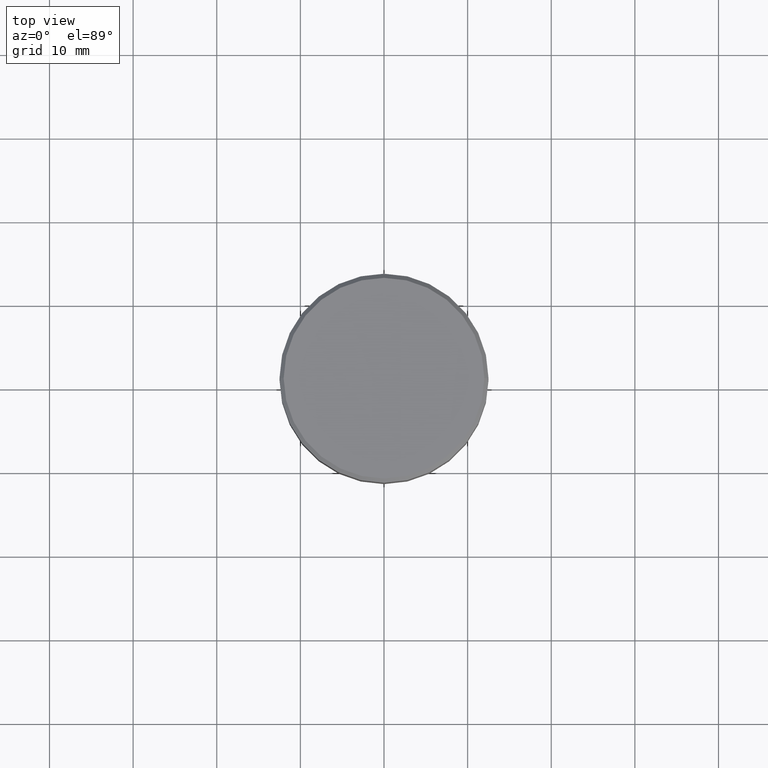
[diagram: clean part render]
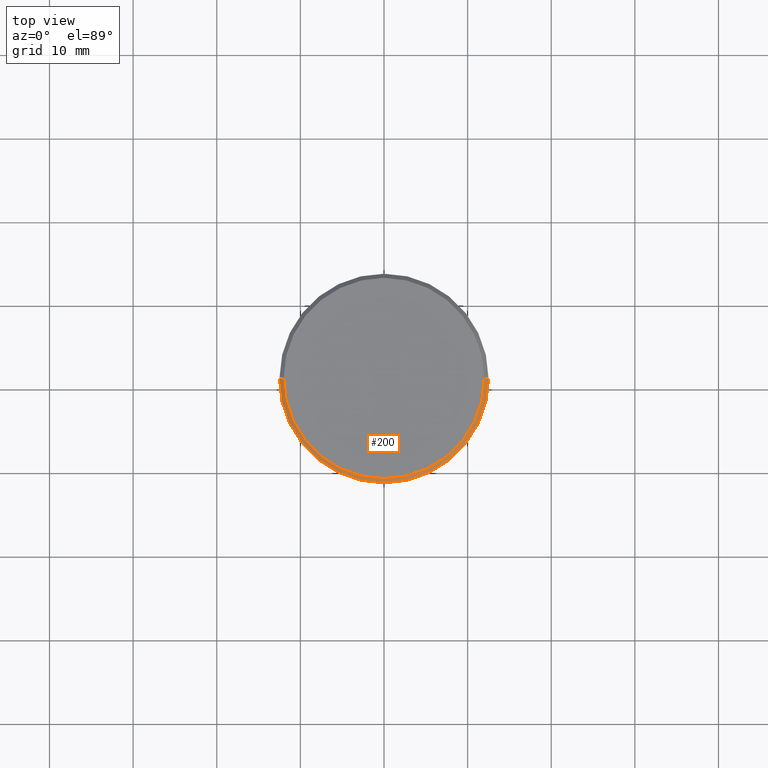
[diagram: same view with one face highlighted and labeled with its STEP entity id]
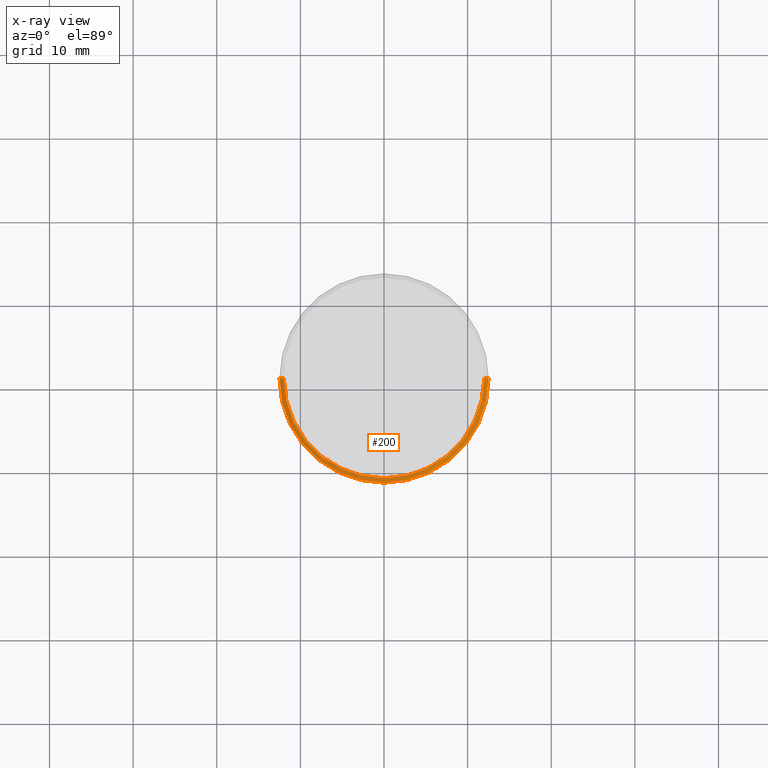
[diagram: x-ray of the same camera — body ghosted, the highlighted face saturated]
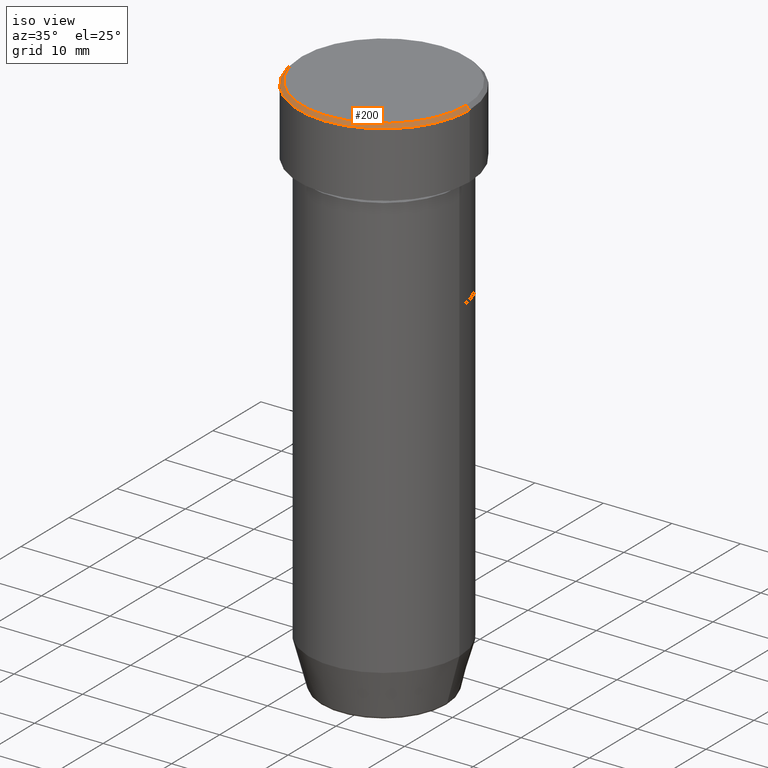
[diagram: same view with one face highlighted and labeled with its STEP entity id]
A machine part, top view. The second image highlights one B-rep face of the part: STEP entity #200.
The next image is the same camera in x-ray: the body ghosted, the highlighted face saturated — about 0% of this face is hidden behind the body in this view.
A second angle (iso view) of the same face is appended — the face is thin or edge-on in the first view.
In plain terms, the highlighted conical surface has half-angle 45 deg.
Its self-contained STEP definition (entity closure, byte-faithful):
#2 = CARTESIAN_POINT ( 'NONE',  ( 0.000000000000000000, 0.000000000000000000, 0.000000000000000000 ) ) ;
#4 = VERTEX_POINT ( 'NONE', #120 ) ;
#11 = AXIS2_PLACEMENT_3D ( 'NONE', #507, #373, #294 ) ;
#41 = CIRCLE ( 'NONE', #237, 12.00000000000000355 ) ;
#51 = ORIENTED_EDGE ( 'NONE', *, *, #521, .F. ) ;
#55 = VERTEX_POINT ( 'NONE', #117 ) ;
#96 = AXIS2_PLACEMENT_3D ( 'NONE', #2, #578, #440 ) ;
#117 = CARTESIAN_POINT ( 'NONE',  ( -12.00000000000000355, 0.000000000000000000, 0.000000000000000000 ) ) ;
#120 = CARTESIAN_POINT ( 'NONE',  ( 12.50000000000000000, 0.000000000000000000, -0.4999999999999988343 ) ) ;
#123 = DIRECTION ( 'NONE',  ( 1.000000000000000000, 0.000000000000000000, 0.000000000000000000 ) ) ;
#126 = VECTOR ( 'NONE', #556, 999.9999999999998863 ) ;
#128 = VERTEX_POINT ( 'NONE', #135 ) ;
#130 = EDGE_CURVE ( 'NONE', #4, #128, #505, .T. ) ;
#135 = CARTESIAN_POINT ( 'NONE',  ( -12.50000000000000000, 1.530808498934191521E-15, -0.4999999999999988343 ) ) ;
#166 = EDGE_CURVE ( 'NONE', #55, #128, #424, .T. ) ;
#200 = ADVANCED_FACE ( 'NONE', ( #413 ), #525, .T. ) ;
#237 = AXIS2_PLACEMENT_3D ( 'NONE', #593, #545, #123 ) ;
#256 = EDGE_CURVE ( 'NONE', #55, #277, #41, .T. ) ;
#275 = CARTESIAN_POINT ( 'NONE',  ( 12.00000000000000355, 1.469576158976824342E-15, 0.000000000000000000 ) ) ;
#277 = VERTEX_POINT ( 'NONE', #529 ) ;
#294 = DIRECTION ( 'NONE',  ( 1.000000000000000000, 0.000000000000000000, 0.000000000000000000 ) ) ;
#335 = ORIENTED_EDGE ( 'NONE', *, *, #166, .T. ) ;
#357 = ORIENTED_EDGE ( 'NONE', *, *, #130, .F. ) ;
#373 = DIRECTION ( 'NONE',  ( 0.000000000000000000, 0.000000000000000000, -1.000000000000000000 ) ) ;
#407 = ORIENTED_EDGE ( 'NONE', *, *, #256, .F. ) ;
#413 = FACE_OUTER_BOUND ( 'NONE', #506, .T. ) ;
#424 = LINE ( 'NONE', #568, #579 ) ;
#440 = DIRECTION ( 'NONE',  ( -1.000000000000000000, 0.000000000000000000, 0.000000000000000000 ) ) ;
#456 = LINE ( 'NONE', #275, #126 ) ;
#505 = CIRCLE ( 'NONE', #11, 12.50000000000000000 ) ;
#506 = EDGE_LOOP ( 'NONE', ( #51, #407, #335, #357 ) ) ;
#507 = CARTESIAN_POINT ( 'NONE',  ( 0.000000000000000000, 0.000000000000000000, -0.4999999999999988343 ) ) ;
#521 = EDGE_CURVE ( 'NONE', #277, #4, #456, .T. ) ;
#525 = CONICAL_SURFACE ( 'NONE', #96, 12.00000000000000355, 0.7853981633974465026 ) ;
#529 = CARTESIAN_POINT ( 'NONE',  ( 12.00000000000000355, 1.500192328955507734E-15, 0.000000000000000000 ) ) ;
#545 = DIRECTION ( 'NONE',  ( -0.000000000000000000, -0.000000000000000000, 1.000000000000000000 ) ) ;
#556 = DIRECTION ( 'NONE',  ( 0.7071067811865462405, 8.659560562354918067E-17, -0.7071067811865489050 ) ) ;
#564 = DIRECTION ( 'NONE',  ( -0.7071067811865462405, 0.000000000000000000, -0.7071067811865489050 ) ) ;
#568 = CARTESIAN_POINT ( 'NONE',  ( -12.00000000000000355, 0.000000000000000000, 0.000000000000000000 ) ) ;
#578 = DIRECTION ( 'NONE',  ( 0.000000000000000000, 0.000000000000000000, -1.000000000000000000 ) ) ;
#579 = VECTOR ( 'NONE', #564, 999.9999999999998863 ) ;
#593 = CARTESIAN_POINT ( 'NONE',  ( 0.000000000000000000, 0.000000000000000000, 0.000000000000000000 ) ) ;